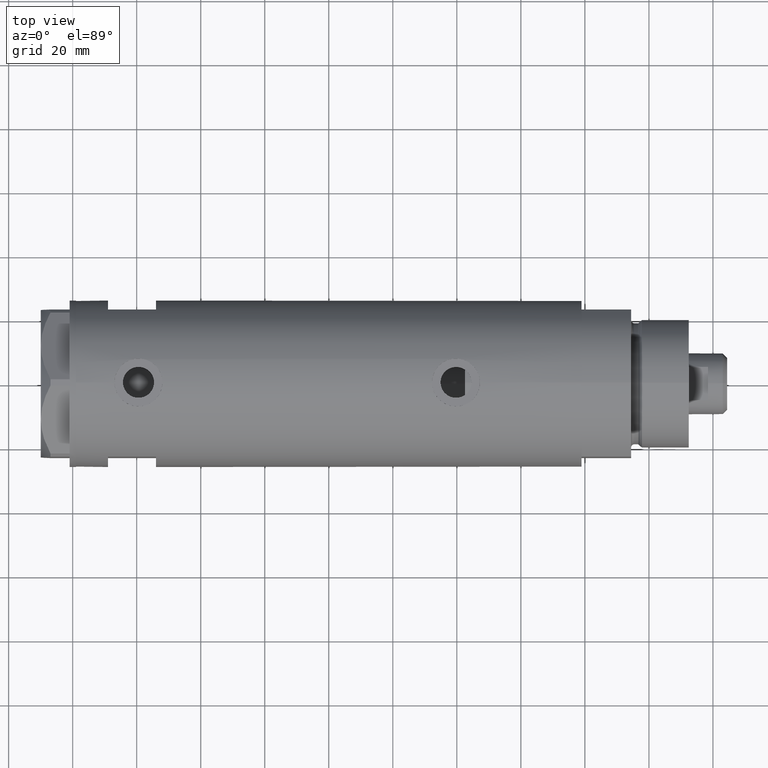
[diagram: clean part render]
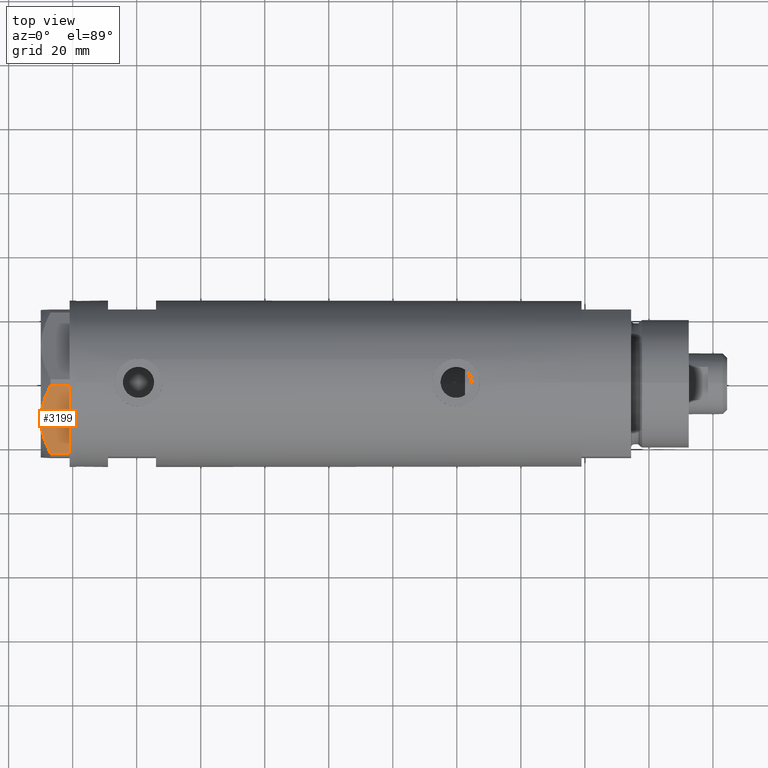
[diagram: same view with one face highlighted and labeled with its STEP entity id]
A machine part, top view. The second image highlights one B-rep face of the part: STEP entity #3199.
In plain terms, the highlighted planar face has unit normal (-0, 0.5, -0.866).
Its self-contained STEP definition (entity closure, byte-faithful):
#22 = CARTESIAN_POINT ( 'NONE',  ( -3.925137811031424562, -24.29193301091729396, 7.397272853992039821 ) ) ;
#73 = EDGE_CURVE ( 'NONE', #2308, #3035, #872, .T. ) ;
#75 = CARTESIAN_POINT ( 'NONE',  ( -22.99999999999990408, -13.27905619136147841, 0.000000000000000000 ) ) ;
#149 = EDGE_LOOP ( 'NONE', ( #1613, #3389, #983, #369, #4546, #1436, #2171 ) ) ;
#154 = CARTESIAN_POINT ( 'NONE',  ( -0.9699484522383977625, -25.99811238272274494, 9.000000000000000000 ) ) ;
#159 = VERTEX_POINT ( 'NONE', #4461 ) ;
#243 = CARTESIAN_POINT ( 'NONE',  ( -13.80210138309694301, -18.58946543380922378, 8.852712638955804181 ) ) ;
#253 = CARTESIAN_POINT ( 'NONE',  ( -22.99999999999990408, -13.27905619136147841, 9.000000000000000000 ) ) ;
#363 = DIRECTION ( 'NONE',  ( 0.8660254037844415942, -0.4999999999999950595, 0.000000000000000000 ) ) ;
#369 = ORIENTED_EDGE ( 'NONE', *, *, #2313, .T. ) ;
#394 = CARTESIAN_POINT ( 'NONE',  ( -7.884645426990268824, -22.00591022298511490, 8.707651728477127762 ) ) ;
#502 = LINE ( 'NONE', #1293, #4790 ) ;
#609 = CARTESIAN_POINT ( 'NONE',  ( -20.37350567916426058, -14.79546339452094017, 6.877782426143456362 ) ) ;
#718 = CARTESIAN_POINT ( 'NONE',  ( -5.229981517799206614, -23.53858114556453529, 7.892128867758890998 ) ) ;
#795 = CARTESIAN_POINT ( 'NONE',  ( -22.03005154776146313, -13.83905619136139364, 5.983800287807550689 ) ) ;
#821 = EDGE_CURVE ( 'NONE', #3035, #4840, #2348, .T. ) ;
#872 = B_SPLINE_CURVE_WITH_KNOTS ( 'NONE', 3,
 ( #4000, #609, #1030, #4784, #2097, #243, #1739, #1000, #3255, #4756 ),
 .UNSPECIFIED., .F., .F.,
 ( 4, 2, 2, 2, 4 ),
 ( 0.001228959670438514989, 0.007497079744270818830, 0.01063113978118697227, 0.01219816979964504812, 0.01376519981810312397 ),
 .UNSPECIFIED. ) ;
#983 = ORIENTED_EDGE ( 'NONE', *, *, #2621, .T. ) ;
#1000 = CARTESIAN_POINT ( 'NONE',  ( -12.41906678023023325, -19.38796083407287085, 8.981686407609506873 ) ) ;
#1030 = CARTESIAN_POINT ( 'NONE',  ( -18.67981377008999644, -15.77331687414923778, 7.629374868826104716 ) ) ;
#1112 = CARTESIAN_POINT ( 'NONE',  ( -0.9699484522404678843, -25.99811238272155123, 5.983800287808756835 ) ) ;
#1293 = CARTESIAN_POINT ( 'NONE',  ( -22.99999999999990408, -13.27905619136147841, 0.000000000000000000 ) ) ;
#1407 = VECTOR ( 'NONE', #1571, 1000.000000000000000 ) ;
#1436 = ORIENTED_EDGE ( 'NONE', *, *, #4430, .T. ) ;
#1499 = VECTOR ( 'NONE', #2712, 1000.000000000000000 ) ;
#1571 = DIRECTION ( 'NONE',  ( 0.8660254037844415942, -0.4999999999999950595, 0.000000000000000000 ) ) ;
#1613 = ORIENTED_EDGE ( 'NONE', *, *, #73, .F. ) ;
#1625 = EDGE_CURVE ( 'NONE', #4289, #1914, #502, .T. ) ;
#1633 = CARTESIAN_POINT ( 'NONE',  ( -0.9699484522404678843, -25.99811238272155123, 5.983800287808756835 ) ) ;
#1739 = CARTESIAN_POINT ( 'NONE',  ( -13.34348161667001698, -18.85424967941148822, 8.907842277728438063 ) ) ;
#1768 = FACE_OUTER_BOUND ( 'NONE', #149, .T. ) ;
#1846 = CARTESIAN_POINT ( 'NONE',  ( -11.49999999999990585, -19.91858428704219364, 9.000000000000000000 ) ) ;
#1869 = CARTESIAN_POINT ( 'NONE',  ( -22.99999999999990408, -13.27905619136147841, 0.000000000000000000 ) ) ;
#1870 = VECTOR ( 'NONE', #363, 1000.000000000000000 ) ;
#1903 = CARTESIAN_POINT ( 'NONE',  ( -1.799196345398571983, -25.51934588838179607, 6.431317509510369845 ) ) ;
#1914 = VERTEX_POINT ( 'NONE', #3575 ) ;
#2009 = CARTESIAN_POINT ( 'NONE',  ( -22.03005154776132102, -13.83905619136147536, 9.000000000000000000 ) ) ;
#2097 = CARTESIAN_POINT ( 'NONE',  ( -15.16323225988328538, -17.80361615569431777, 8.637313967156948991 ) ) ;
#2171 = ORIENTED_EDGE ( 'NONE', *, *, #821, .F. ) ;
#2220 = CARTESIAN_POINT ( 'NONE',  ( -5.671686373603866294, -23.28356272816335348, 8.040681765829727823 ) ) ;
#2275 = AXIS2_PLACEMENT_3D ( 'NONE', #253, #3266, #4767 ) ;
#2283 = VERTEX_POINT ( 'NONE', #4132 ) ;
#2305 = LINE ( 'NONE', #75, #1407 ) ;
#2308 = VERTEX_POINT ( 'NONE', #795 ) ;
#2313 = EDGE_CURVE ( 'NONE', #159, #4289, #2305, .T. ) ;
#2348 = B_SPLINE_CURVE_WITH_KNOTS ( 'NONE', 3,
 ( #1846, #4476, #394, #2220, #718, #4187, #22, #4500, #1903, #1112 ),
 .UNSPECIFIED., .F., .F.,
 ( 4, 2, 2, 2, 4 ),
 ( 0.01376519981810312397, 0.01998941321701459134, 0.02154546656674245428, 0.02310151991647032069, 0.02621362661592604310 ),
 .UNSPECIFIED. ) ;
#2418 = LINE ( 'NONE', #154, #2826 ) ;
#2523 = CARTESIAN_POINT ( 'NONE',  ( -0.9999999999997406519, -25.98076211353317433, 0.000000000000000000 ) ) ;
#2621 = EDGE_CURVE ( 'NONE', #2283, #159, #3661, .T. ) ;
#2712 = DIRECTION ( 'NONE',  ( -0.000000000000000000, 0.000000000000000000, -1.000000000000000000 ) ) ;
#2739 = LINE ( 'NONE', #2009, #1499 ) ;
#2826 = VECTOR ( 'NONE', #3186, 1000.000000000000000 ) ;
#3035 = VERTEX_POINT ( 'NONE', #3065 ) ;
#3065 = CARTESIAN_POINT ( 'NONE',  ( -11.49999999999990585, -19.91858428704219364, 9.000000000000000000 ) ) ;
#3186 = DIRECTION ( 'NONE',  ( 0.000000000000000000, 0.000000000000000000, 1.000000000000000000 ) ) ;
#3199 = ADVANCED_FACE ( 'NONE', ( #1768 ), #4013, .F. ) ;
#3255 = CARTESIAN_POINT ( 'NONE',  ( -11.95865151389046588, -19.65378171203314395, 9.000000000000095923 ) ) ;
#3266 = DIRECTION ( 'NONE',  ( 0.4999999999999950595, 0.8660254037844415942, -0.000000000000000000 ) ) ;
#3389 = ORIENTED_EDGE ( 'NONE', *, *, #3760, .T. ) ;
#3575 = CARTESIAN_POINT ( 'NONE',  ( -0.9699484522383943208, -25.99811238272274494, 0.000000000000000000 ) ) ;
#3661 = LINE ( 'NONE', #1869, #1870 ) ;
#3760 = EDGE_CURVE ( 'NONE', #2308, #2283, #2739, .T. ) ;
#4000 = CARTESIAN_POINT ( 'NONE',  ( -22.03005154776146313, -13.83905619136139364, 5.983800287807550689 ) ) ;
#4013 = PLANE ( 'NONE',  #2275 ) ;
#4132 = CARTESIAN_POINT ( 'NONE',  ( -22.03005154776132102, -13.83905619136147536, 0.000000000000000000 ) ) ;
#4187 = CARTESIAN_POINT ( 'NONE',  ( -4.357207709417335373, -24.04247733877546267, 7.570552255230290406 ) ) ;
#4289 = VERTEX_POINT ( 'NONE', #2523 ) ;
#4308 = DIRECTION ( 'NONE',  ( 0.8660254037844415942, -0.4999999999999950595, 0.000000000000000000 ) ) ;
#4430 = EDGE_CURVE ( 'NONE', #1914, #4840, #2418, .T. ) ;
#4461 = CARTESIAN_POINT ( 'NONE',  ( -21.99999999999998224, -13.85640646055105485, 0.000000000000000000 ) ) ;
#4476 = CARTESIAN_POINT ( 'NONE',  ( -9.678244919010385416, -20.97037507344893115, 9.000000000000088818 ) ) ;
#4500 = CARTESIAN_POINT ( 'NONE',  ( -2.640413878808339110, -25.03366871902064261, 6.844201024439214187 ) ) ;
#4546 = ORIENTED_EDGE ( 'NONE', *, *, #1625, .T. ) ;
#4756 = CARTESIAN_POINT ( 'NONE',  ( -11.49999999999990585, -19.91858428704219364, 9.000000000000000000 ) ) ;
#4767 = DIRECTION ( 'NONE',  ( -0.8660254037844414832, 0.4999999999999950040, 0.000000000000000000 ) ) ;
#4784 = CARTESIAN_POINT ( 'NONE',  ( -16.05322244309625290, -17.28978008384019915, 8.426899937603781865 ) ) ;
#4790 = VECTOR ( 'NONE', #4308, 1000.000000000000000 ) ;
#4840 = VERTEX_POINT ( 'NONE', #1633 ) ;